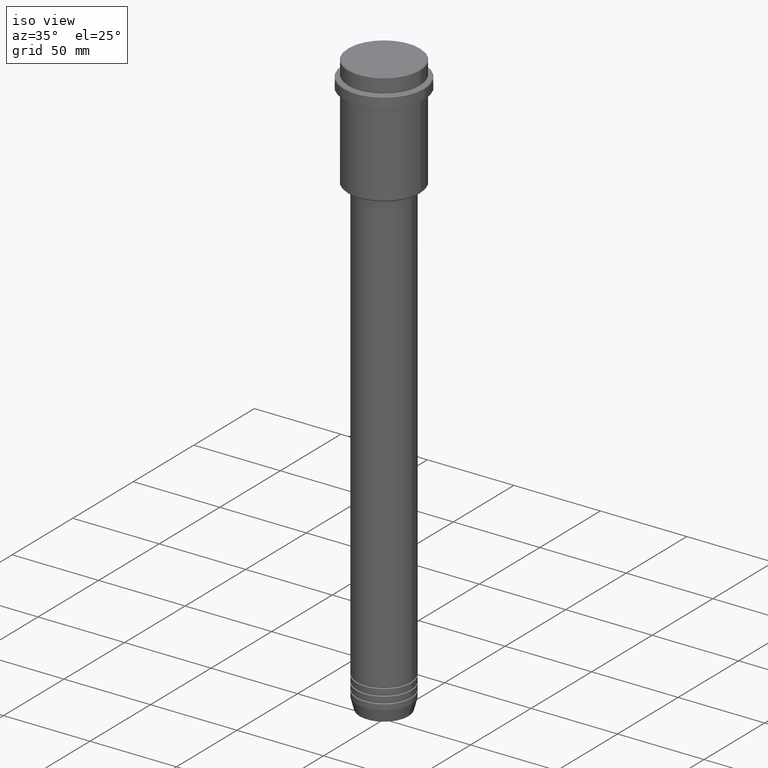
[diagram: clean part render]
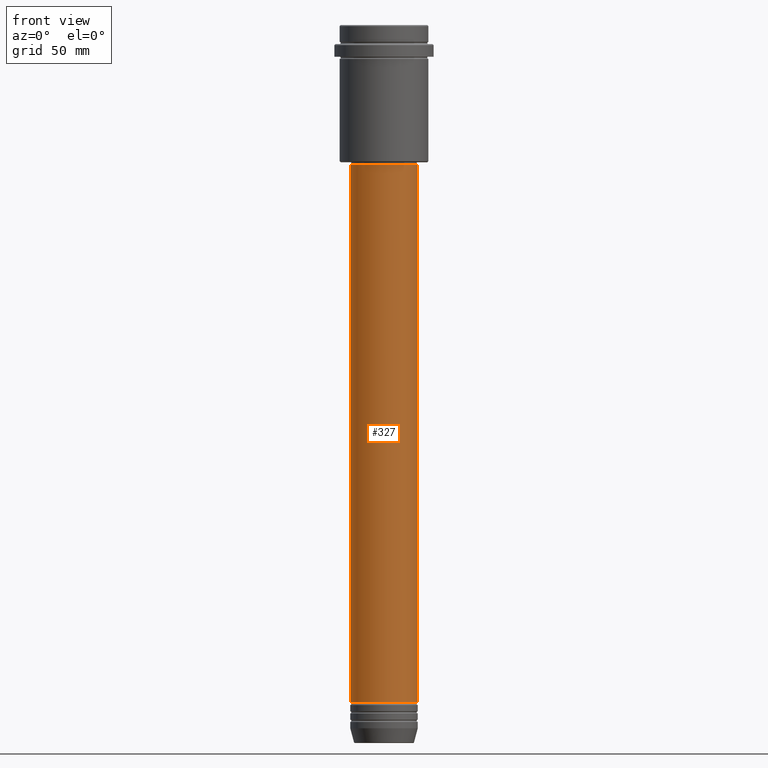
[diagram: tour spotlight — one face highlighted and labeled with its STEP entity id]
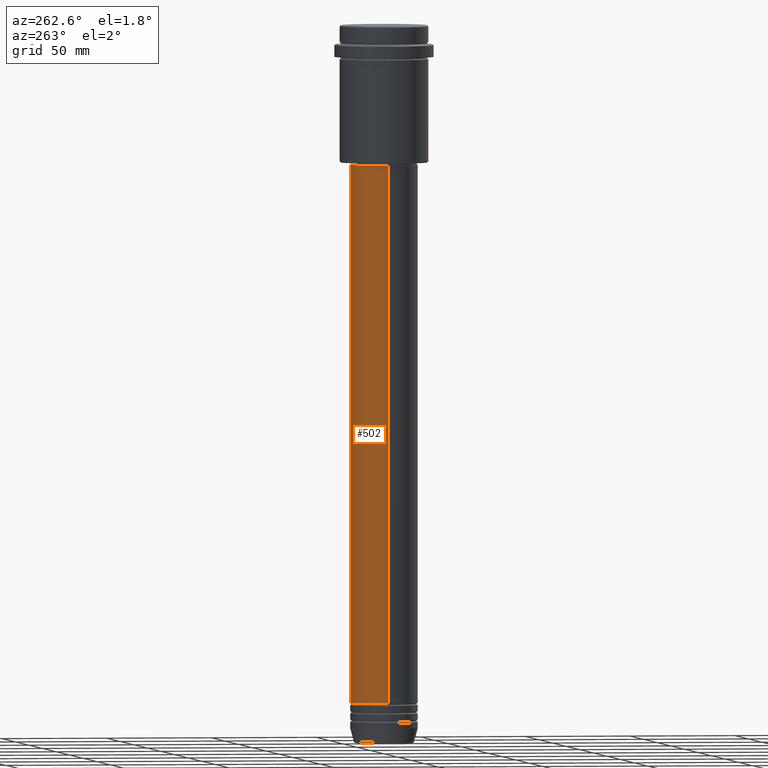
[diagram: tour spotlight — one face highlighted and labeled with its STEP entity id]
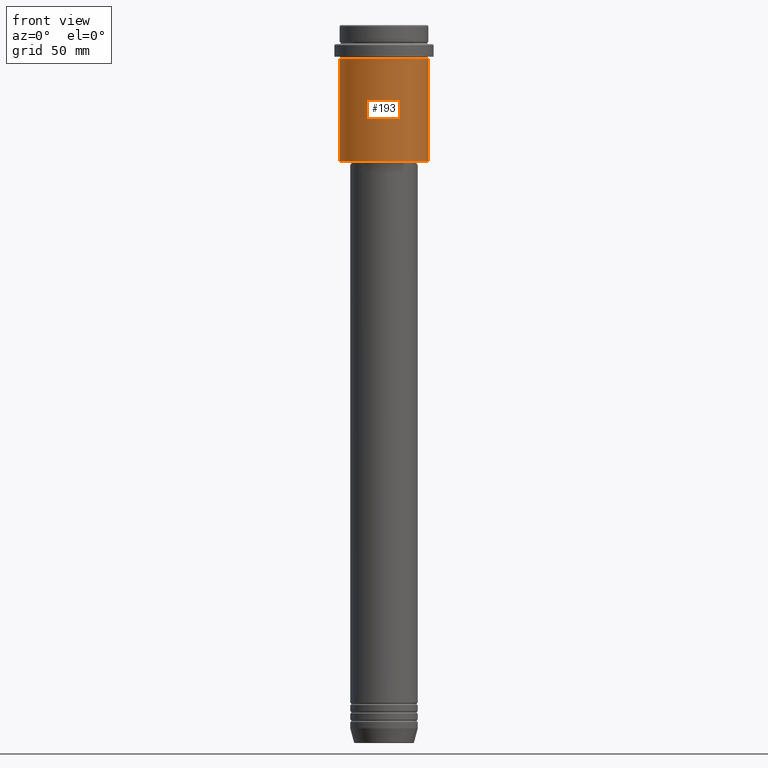
[diagram: tour spotlight — one face highlighted and labeled with its STEP entity id]
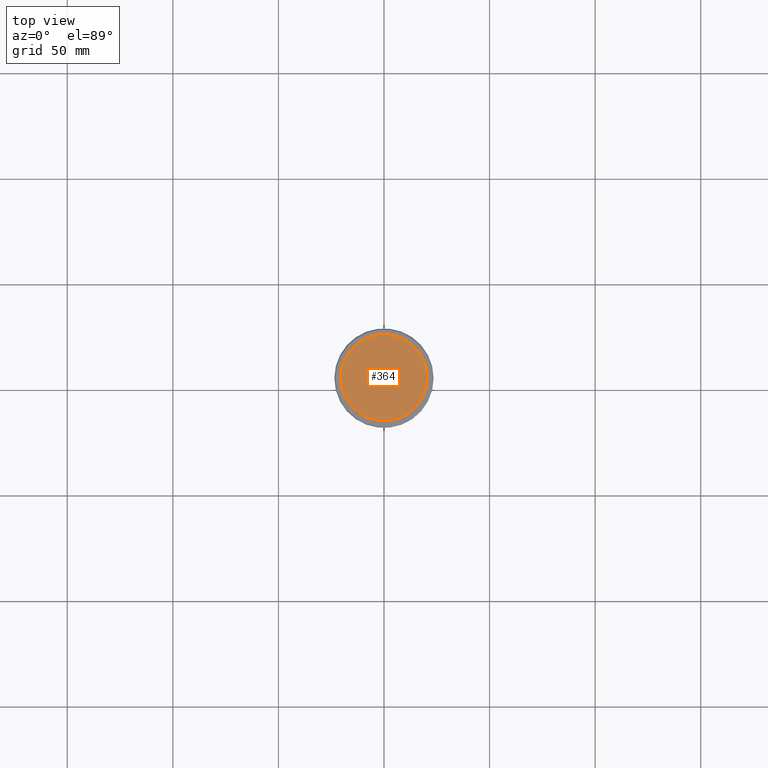
[diagram: tour spotlight — one face highlighted and labeled with its STEP entity id]
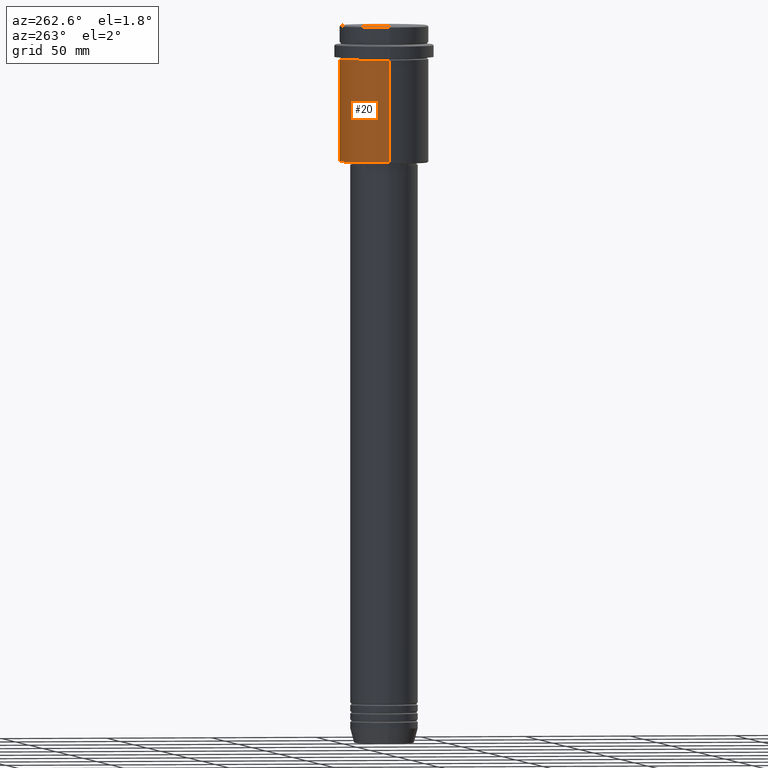
[diagram: tour spotlight — one face highlighted and labeled with its STEP entity id]
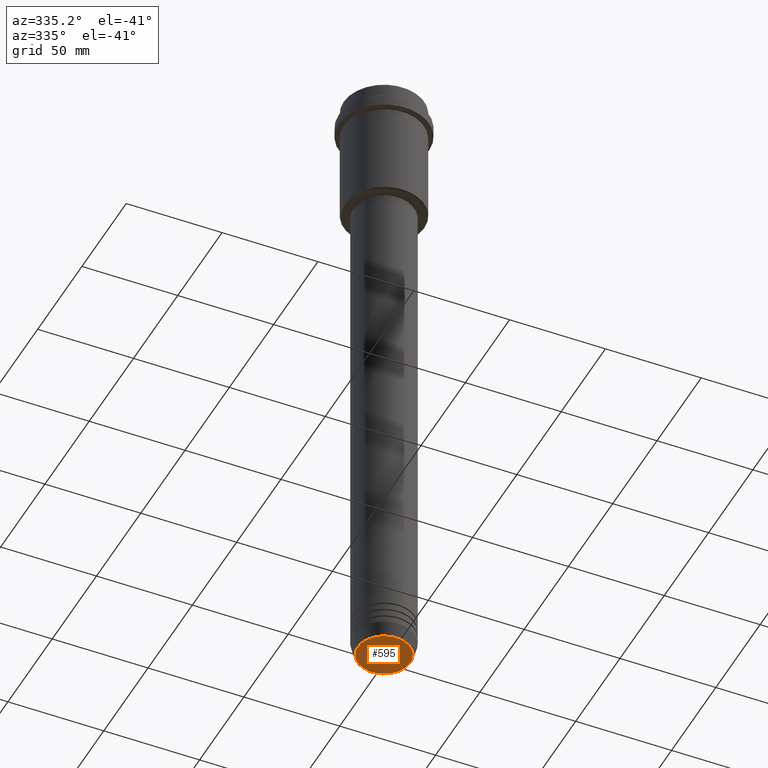
[diagram: tour spotlight — one face highlighted and labeled with its STEP entity id]
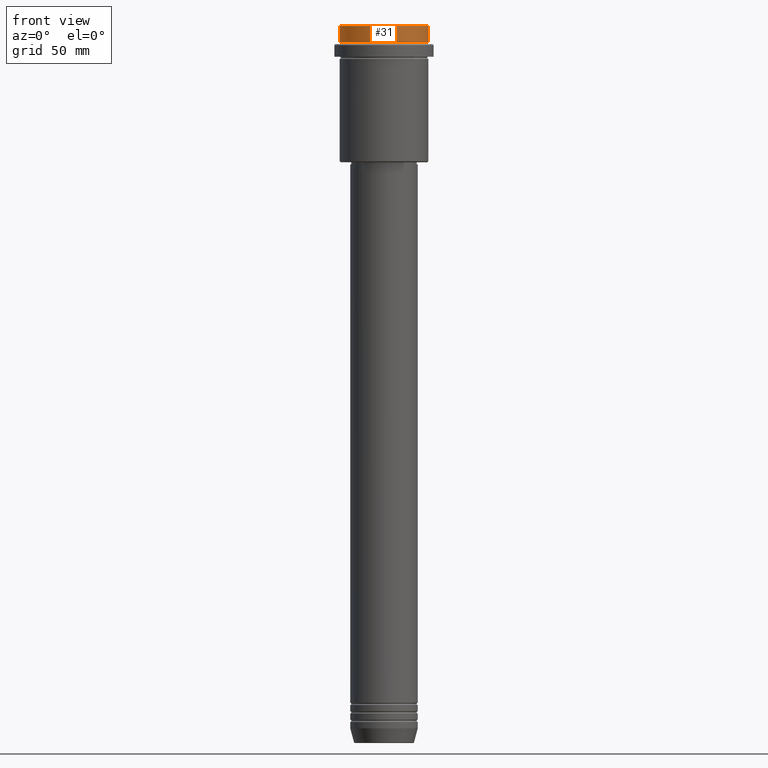
[diagram: tour spotlight — one face highlighted and labeled with its STEP entity id]
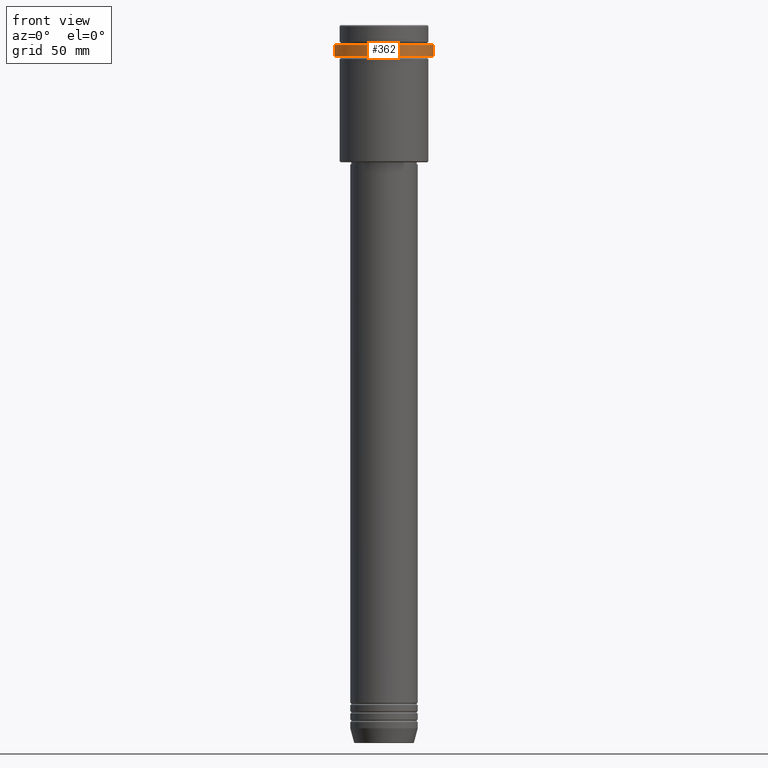
[diagram: tour spotlight — one face highlighted and labeled with its STEP entity id]
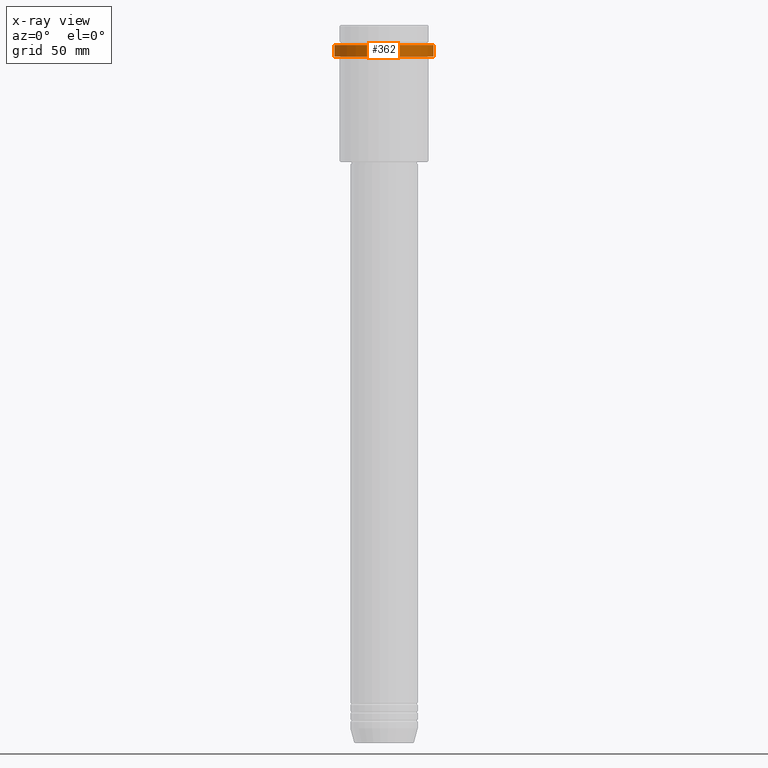
[diagram: x-ray of the same camera — body ghosted, this tour face saturated]
A machine part: a face-by-face anatomy tour. The part has 52 B-rep faces; the first image is the clean iso view, then the 8 largest visible faces are spotlighted one at a time (largest first), each with its STEP entity span.

Face 1 — front view, entity #327. In plain terms, the highlighted cylindrical surface (edge-blend (fillet) strip) has radius 16 mm, axis along (-0, -0, 1).
Definition (entity closure, byte-faithful):
#14 = EDGE_CURVE ( 'NONE', #330, #1204, #632, .T. ) ;
#42 = CARTESIAN_POINT ( 'NONE',  ( -16.00000000000000355, 1.959434878635765526E-15, -65.99999999999991473 ) ) ;
#59 = DIRECTION ( 'NONE',  ( -0.000000000000000000, -0.000000000000000000, 1.000000000000000000 ) ) ;
#96 = AXIS2_PLACEMENT_3D ( 'NONE', #317, #1205, #874 ) ;
#131 = DIRECTION ( 'NONE',  ( -0.000000000000000000, -0.000000000000000000, 1.000000000000000000 ) ) ;
#138 = DIRECTION ( 'NONE',  ( 1.000000000000000000, 0.000000000000000000, 0.000000000000000000 ) ) ;
#170 = ORIENTED_EDGE ( 'NONE', *, *, #237, .T. ) ;
#237 = EDGE_CURVE ( 'NONE', #904, #1204, #671, .T. ) ;
#254 = EDGE_CURVE ( 'NONE', #1353, #904, #1234, .T. ) ;
#314 = AXIS2_PLACEMENT_3D ( 'NONE', #345, #1127, #138 ) ;
#317 = CARTESIAN_POINT ( 'NONE',  ( 0.000000000000000000, 0.000000000000000000, -65.99999999999991473 ) ) ;
#327 = ADVANCED_FACE ( 'NONE', ( #585 ), #390, .T. ) ;
#330 = VERTEX_POINT ( 'NONE', #42 ) ;
#335 = VECTOR ( 'NONE', #1238, 1000.000000000000000 ) ;
#345 = CARTESIAN_POINT ( 'NONE',  ( 0.000000000000000000, 0.000000000000000000, -320.9999999999998863 ) ) ;
#349 = CARTESIAN_POINT ( 'NONE',  ( 16.00000000000000000, 0.000000000000000000, 0.000000000000000000 ) ) ;
#390 = CYLINDRICAL_SURFACE ( 'NONE', #448, 16.00000000000000000 ) ;
#448 = AXIS2_PLACEMENT_3D ( 'NONE', #1024, #59, #811 ) ;
#543 = CARTESIAN_POINT ( 'NONE',  ( -16.00000000000000000, 1.959434878635765131E-15, 0.000000000000000000 ) ) ;
#585 = FACE_OUTER_BOUND ( 'NONE', #741, .T. ) ;
#598 = CARTESIAN_POINT ( 'NONE',  ( 16.00000000000000355, 0.000000000000000000, -65.99999999999991473 ) ) ;
#632 = CIRCLE ( 'NONE', #96, 16.00000000000000355 ) ;
#645 = ORIENTED_EDGE ( 'NONE', *, *, #14, .F. ) ;
#671 = LINE ( 'NONE', #349, #335 ) ;
#741 = EDGE_LOOP ( 'NONE', ( #1272, #853, #170, #645 ) ) ;
#811 = DIRECTION ( 'NONE',  ( 1.000000000000000000, 0.000000000000000000, 0.000000000000000000 ) ) ;
#831 = VECTOR ( 'NONE', #131, 1000.000000000000000 ) ;
#853 = ORIENTED_EDGE ( 'NONE', *, *, #254, .T. ) ;
#874 = DIRECTION ( 'NONE',  ( 1.000000000000000000, 0.000000000000000000, 0.000000000000000000 ) ) ;
#904 = VERTEX_POINT ( 'NONE', #1328 ) ;
#1024 = CARTESIAN_POINT ( 'NONE',  ( 0.000000000000000000, 0.000000000000000000, 0.000000000000000000 ) ) ;
#1099 = EDGE_CURVE ( 'NONE', #1353, #330, #1126, .T. ) ;
#1126 = LINE ( 'NONE', #543, #831 ) ;
#1127 = DIRECTION ( 'NONE',  ( -0.000000000000000000, -0.000000000000000000, 1.000000000000000000 ) ) ;
#1204 = VERTEX_POINT ( 'NONE', #598 ) ;
#1205 = DIRECTION ( 'NONE',  ( -0.000000000000000000, -0.000000000000000000, 1.000000000000000000 ) ) ;
#1219 = CARTESIAN_POINT ( 'NONE',  ( -16.00000000000000000, 1.959434878635765131E-15, -320.9999999999998863 ) ) ;
#1234 = CIRCLE ( 'NONE', #314, 16.00000000000000000 ) ;
#1238 = DIRECTION ( 'NONE',  ( -0.000000000000000000, -0.000000000000000000, 1.000000000000000000 ) ) ;
#1272 = ORIENTED_EDGE ( 'NONE', *, *, #1099, .F. ) ;
#1328 = CARTESIAN_POINT ( 'NONE',  ( 16.00000000000000000, 0.000000000000000000, -320.9999999999998863 ) ) ;
#1353 = VERTEX_POINT ( 'NONE', #1219 ) ;

Face 2 — auxiliary view, entity #502. In plain terms, the highlighted cylindrical surface (edge-blend (fillet) strip) has radius 16 mm, axis along (-0, -0, 1).
Definition (entity closure, byte-faithful):
#42 = CARTESIAN_POINT ( 'NONE',  ( -16.00000000000000355, 1.959434878635765526E-15, -65.99999999999991473 ) ) ;
#81 = CIRCLE ( 'NONE', #994, 16.00000000000000000 ) ;
#124 = AXIS2_PLACEMENT_3D ( 'NONE', #749, #316, #1374 ) ;
#131 = DIRECTION ( 'NONE',  ( -0.000000000000000000, -0.000000000000000000, 1.000000000000000000 ) ) ;
#225 = DIRECTION ( 'NONE',  ( -0.000000000000000000, -0.000000000000000000, 1.000000000000000000 ) ) ;
#237 = EDGE_CURVE ( 'NONE', #904, #1204, #671, .T. ) ;
#245 = DIRECTION ( 'NONE',  ( -0.000000000000000000, -0.000000000000000000, 1.000000000000000000 ) ) ;
#265 = EDGE_CURVE ( 'NONE', #1204, #330, #355, .T. ) ;
#316 = DIRECTION ( 'NONE',  ( -0.000000000000000000, -0.000000000000000000, 1.000000000000000000 ) ) ;
#330 = VERTEX_POINT ( 'NONE', #42 ) ;
#335 = VECTOR ( 'NONE', #1238, 1000.000000000000000 ) ;
#349 = CARTESIAN_POINT ( 'NONE',  ( 16.00000000000000000, 0.000000000000000000, 0.000000000000000000 ) ) ;
#355 = CIRCLE ( 'NONE', #1142, 16.00000000000000355 ) ;
#502 = ADVANCED_FACE ( 'NONE', ( #1392 ), #1294, .T. ) ;
#543 = CARTESIAN_POINT ( 'NONE',  ( -16.00000000000000000, 1.959434878635765131E-15, 0.000000000000000000 ) ) ;
#574 = EDGE_CURVE ( 'NONE', #904, #1353, #81, .T. ) ;
#575 = CARTESIAN_POINT ( 'NONE',  ( 0.000000000000000000, 0.000000000000000000, -65.99999999999991473 ) ) ;
#598 = CARTESIAN_POINT ( 'NONE',  ( 16.00000000000000355, 0.000000000000000000, -65.99999999999991473 ) ) ;
#640 = ORIENTED_EDGE ( 'NONE', *, *, #574, .T. ) ;
#641 = ORIENTED_EDGE ( 'NONE', *, *, #1099, .T. ) ;
#671 = LINE ( 'NONE', #349, #335 ) ;
#686 = ORIENTED_EDGE ( 'NONE', *, *, #237, .F. ) ;
#708 = DIRECTION ( 'NONE',  ( 1.000000000000000000, 0.000000000000000000, 0.000000000000000000 ) ) ;
#749 = CARTESIAN_POINT ( 'NONE',  ( 0.000000000000000000, 0.000000000000000000, 0.000000000000000000 ) ) ;
#831 = VECTOR ( 'NONE', #131, 1000.000000000000000 ) ;
#872 = DIRECTION ( 'NONE',  ( 1.000000000000000000, 0.000000000000000000, 0.000000000000000000 ) ) ;
#904 = VERTEX_POINT ( 'NONE', #1328 ) ;
#994 = AXIS2_PLACEMENT_3D ( 'NONE', #1098, #225, #872 ) ;
#1098 = CARTESIAN_POINT ( 'NONE',  ( 0.000000000000000000, 0.000000000000000000, -320.9999999999998863 ) ) ;
#1099 = EDGE_CURVE ( 'NONE', #1353, #330, #1126, .T. ) ;
#1126 = LINE ( 'NONE', #543, #831 ) ;
#1142 = AXIS2_PLACEMENT_3D ( 'NONE', #575, #245, #708 ) ;
#1204 = VERTEX_POINT ( 'NONE', #598 ) ;
#1219 = CARTESIAN_POINT ( 'NONE',  ( -16.00000000000000000, 1.959434878635765131E-15, -320.9999999999998863 ) ) ;
#1238 = DIRECTION ( 'NONE',  ( -0.000000000000000000, -0.000000000000000000, 1.000000000000000000 ) ) ;
#1245 = ORIENTED_EDGE ( 'NONE', *, *, #265, .F. ) ;
#1294 = CYLINDRICAL_SURFACE ( 'NONE', #124, 16.00000000000000000 ) ;
#1328 = CARTESIAN_POINT ( 'NONE',  ( 16.00000000000000000, 0.000000000000000000, -320.9999999999998863 ) ) ;
#1353 = VERTEX_POINT ( 'NONE', #1219 ) ;
#1374 = DIRECTION ( 'NONE',  ( 1.000000000000000000, 0.000000000000000000, 0.000000000000000000 ) ) ;
#1379 = EDGE_LOOP ( 'NONE', ( #640, #641, #1245, #686 ) ) ;
#1392 = FACE_OUTER_BOUND ( 'NONE', #1379, .T. ) ;

Face 3 — front view, entity #193. In plain terms, the highlighted cylindrical surface (partial cylindrical patch) has radius 21 mm, axis along (-0, -0, 1).
Definition (entity closure, byte-faithful):
#28 = CARTESIAN_POINT ( 'NONE',  ( 20.99999999999999645, 0.000000000000000000, 0.000000000000000000 ) ) ;
#85 = CARTESIAN_POINT ( 'NONE',  ( 0.000000000000000000, 0.000000000000000000, -16.00000000000000355 ) ) ;
#125 = CARTESIAN_POINT ( 'NONE',  ( 0.000000000000000000, 0.000000000000000000, 0.000000000000000000 ) ) ;
#146 = VECTOR ( 'NONE', #569, 1000.000000000000000 ) ;
#147 = VERTEX_POINT ( 'NONE', #356 ) ;
#176 = AXIS2_PLACEMENT_3D ( 'NONE', #85, #525, #409 ) ;
#177 = EDGE_CURVE ( 'NONE', #1213, #147, #1316, .T. ) ;
#185 = VERTEX_POINT ( 'NONE', #1100 ) ;
#193 = ADVANCED_FACE ( 'NONE', ( #774 ), #995, .T. ) ;
#299 = ORIENTED_EDGE ( 'NONE', *, *, #743, .F. ) ;
#347 = ORIENTED_EDGE ( 'NONE', *, *, #547, .F. ) ;
#356 = CARTESIAN_POINT ( 'NONE',  ( 20.99999999999999645, 0.000000000000000000, -16.00000000000000355 ) ) ;
#391 = EDGE_LOOP ( 'NONE', ( #299, #732, #1153, #347 ) ) ;
#403 = AXIS2_PLACEMENT_3D ( 'NONE', #125, #1005, #667 ) ;
#409 = DIRECTION ( 'NONE',  ( 1.000000000000000000, 0.000000000000000000, 0.000000000000000000 ) ) ;
#427 = CIRCLE ( 'NONE', #176, 20.99999999999999645 ) ;
#525 = DIRECTION ( 'NONE',  ( -0.000000000000000000, -0.000000000000000000, 1.000000000000000000 ) ) ;
#547 = EDGE_CURVE ( 'NONE', #1134, #147, #427, .T. ) ;
#569 = DIRECTION ( 'NONE',  ( -0.000000000000000000, -0.000000000000000000, 1.000000000000000000 ) ) ;
#570 = DIRECTION ( 'NONE',  ( -0.000000000000000000, -0.000000000000000000, 1.000000000000000000 ) ) ;
#580 = CARTESIAN_POINT ( 'NONE',  ( 0.000000000000000000, 0.000000000000000000, -64.49999999999992895 ) ) ;
#667 = DIRECTION ( 'NONE',  ( 1.000000000000000000, 0.000000000000000000, 0.000000000000000000 ) ) ;
#684 = LINE ( 'NONE', #1121, #1070 ) ;
#732 = ORIENTED_EDGE ( 'NONE', *, *, #970, .T. ) ;
#743 = EDGE_CURVE ( 'NONE', #185, #1134, #684, .T. ) ;
#774 = FACE_OUTER_BOUND ( 'NONE', #391, .T. ) ;
#786 = CIRCLE ( 'NONE', #906, 20.99999999999999645 ) ;
#906 = AXIS2_PLACEMENT_3D ( 'NONE', #580, #1203, #1197 ) ;
#970 = EDGE_CURVE ( 'NONE', #185, #1213, #786, .T. ) ;
#995 = CYLINDRICAL_SURFACE ( 'NONE', #403, 20.99999999999999645 ) ;
#1005 = DIRECTION ( 'NONE',  ( -0.000000000000000000, -0.000000000000000000, 1.000000000000000000 ) ) ;
#1031 = CARTESIAN_POINT ( 'NONE',  ( 20.99999999999999645, 0.000000000000000000, -64.49999999999992895 ) ) ;
#1044 = CARTESIAN_POINT ( 'NONE',  ( -20.99999999999999645, 2.571758278209441267E-15, -16.00000000000000355 ) ) ;
#1070 = VECTOR ( 'NONE', #570, 1000.000000000000000 ) ;
#1100 = CARTESIAN_POINT ( 'NONE',  ( -20.99999999999999645, 2.571758278209441267E-15, -64.49999999999992895 ) ) ;
#1121 = CARTESIAN_POINT ( 'NONE',  ( -20.99999999999999645, 2.571758278209441267E-15, 0.000000000000000000 ) ) ;
#1134 = VERTEX_POINT ( 'NONE', #1044 ) ;
#1153 = ORIENTED_EDGE ( 'NONE', *, *, #177, .T. ) ;
#1197 = DIRECTION ( 'NONE',  ( -1.000000000000000000, 0.000000000000000000, 0.000000000000000000 ) ) ;
#1203 = DIRECTION ( 'NONE',  ( -0.000000000000000000, -0.000000000000000000, 1.000000000000000000 ) ) ;
#1213 = VERTEX_POINT ( 'NONE', #1031 ) ;
#1316 = LINE ( 'NONE', #28, #146 ) ;

Face 4 — top view, entity #364. In plain terms, the highlighted planar face has unit normal (0, -0, 1).
Definition (entity closure, byte-faithful):
#111 = CARTESIAN_POINT ( 'NONE',  ( 0.000000000000000000, 0.000000000000000000, 0.000000000000000000 ) ) ;
#114 = DIRECTION ( 'NONE',  ( -0.000000000000000000, -0.000000000000000000, 1.000000000000000000 ) ) ;
#262 = AXIS2_PLACEMENT_3D ( 'NONE', #453, #114, #568 ) ;
#263 = CARTESIAN_POINT ( 'NONE',  ( 0.000000000000000000, 0.000000000000000000, 0.000000000000000000 ) ) ;
#296 = DIRECTION ( 'NONE',  ( -0.000000000000000000, -0.000000000000000000, 1.000000000000000000 ) ) ;
#364 = ADVANCED_FACE ( 'NONE', ( #922 ), #727, .T. ) ;
#374 = DIRECTION ( 'NONE',  ( 0.000000000000000000, -0.000000000000000000, 1.000000000000000000 ) ) ;
#378 = ORIENTED_EDGE ( 'NONE', *, *, #1342, .T. ) ;
#453 = CARTESIAN_POINT ( 'NONE',  ( 0.000000000000000000, 0.000000000000000000, 0.000000000000000000 ) ) ;
#476 = VERTEX_POINT ( 'NONE', #1087 ) ;
#568 = DIRECTION ( 'NONE',  ( 1.000000000000000000, 0.000000000000000000, 0.000000000000000000 ) ) ;
#587 = EDGE_LOOP ( 'NONE', ( #378, #866 ) ) ;
#678 = CIRCLE ( 'NONE', #753, 20.49999999999996447 ) ;
#727 = PLANE ( 'NONE',  #979 ) ;
#740 = CARTESIAN_POINT ( 'NONE',  ( 20.49999999999996447, 2.541142108230755507E-15, 0.000000000000000000 ) ) ;
#753 = AXIS2_PLACEMENT_3D ( 'NONE', #111, #296, #1095 ) ;
#807 = CIRCLE ( 'NONE', #262, 20.49999999999996447 ) ;
#866 = ORIENTED_EDGE ( 'NONE', *, *, #1042, .T. ) ;
#922 = FACE_OUTER_BOUND ( 'NONE', #587, .T. ) ;
#979 = AXIS2_PLACEMENT_3D ( 'NONE', #263, #374, #1144 ) ;
#1042 = EDGE_CURVE ( 'NONE', #1371, #476, #807, .T. ) ;
#1087 = CARTESIAN_POINT ( 'NONE',  ( -20.49999999999996447, 0.000000000000000000, 0.000000000000000000 ) ) ;
#1095 = DIRECTION ( 'NONE',  ( 1.000000000000000000, 0.000000000000000000, 0.000000000000000000 ) ) ;
#1144 = DIRECTION ( 'NONE',  ( 1.000000000000000000, 0.000000000000000000, 0.000000000000000000 ) ) ;
#1342 = EDGE_CURVE ( 'NONE', #476, #1371, #678, .T. ) ;
#1371 = VERTEX_POINT ( 'NONE', #740 ) ;

Face 5 — auxiliary view, entity #20. In plain terms, the highlighted cylindrical surface (partial cylindrical patch) has radius 21 mm, axis along (-0, -0, 1).
Definition (entity closure, byte-faithful):
#20 = ADVANCED_FACE ( 'NONE', ( #759 ), #432, .T. ) ;
#28 = CARTESIAN_POINT ( 'NONE',  ( 20.99999999999999645, 0.000000000000000000, 0.000000000000000000 ) ) ;
#95 = AXIS2_PLACEMENT_3D ( 'NONE', #388, #1417, #1218 ) ;
#146 = VECTOR ( 'NONE', #569, 1000.000000000000000 ) ;
#147 = VERTEX_POINT ( 'NONE', #356 ) ;
#177 = EDGE_CURVE ( 'NONE', #1213, #147, #1316, .T. ) ;
#182 = ORIENTED_EDGE ( 'NONE', *, *, #743, .T. ) ;
#185 = VERTEX_POINT ( 'NONE', #1100 ) ;
#226 = CIRCLE ( 'NONE', #609, 20.99999999999999645 ) ;
#308 = CARTESIAN_POINT ( 'NONE',  ( 0.000000000000000000, 0.000000000000000000, 0.000000000000000000 ) ) ;
#356 = CARTESIAN_POINT ( 'NONE',  ( 20.99999999999999645, 0.000000000000000000, -16.00000000000000355 ) ) ;
#388 = CARTESIAN_POINT ( 'NONE',  ( 0.000000000000000000, 0.000000000000000000, -16.00000000000000355 ) ) ;
#407 = EDGE_CURVE ( 'NONE', #1213, #185, #226, .T. ) ;
#432 = CYLINDRICAL_SURFACE ( 'NONE', #492, 20.99999999999999645 ) ;
#492 = AXIS2_PLACEMENT_3D ( 'NONE', #308, #1302, #957 ) ;
#569 = DIRECTION ( 'NONE',  ( -0.000000000000000000, -0.000000000000000000, 1.000000000000000000 ) ) ;
#570 = DIRECTION ( 'NONE',  ( -0.000000000000000000, -0.000000000000000000, 1.000000000000000000 ) ) ;
#579 = CIRCLE ( 'NONE', #95, 20.99999999999999645 ) ;
#609 = AXIS2_PLACEMENT_3D ( 'NONE', #849, #842, #966 ) ;
#673 = EDGE_LOOP ( 'NONE', ( #737, #182, #1187, #935 ) ) ;
#684 = LINE ( 'NONE', #1121, #1070 ) ;
#737 = ORIENTED_EDGE ( 'NONE', *, *, #407, .T. ) ;
#743 = EDGE_CURVE ( 'NONE', #185, #1134, #684, .T. ) ;
#759 = FACE_OUTER_BOUND ( 'NONE', #673, .T. ) ;
#842 = DIRECTION ( 'NONE',  ( -0.000000000000000000, -0.000000000000000000, 1.000000000000000000 ) ) ;
#849 = CARTESIAN_POINT ( 'NONE',  ( 0.000000000000000000, 0.000000000000000000, -64.49999999999992895 ) ) ;
#888 = EDGE_CURVE ( 'NONE', #147, #1134, #579, .T. ) ;
#935 = ORIENTED_EDGE ( 'NONE', *, *, #177, .F. ) ;
#957 = DIRECTION ( 'NONE',  ( 1.000000000000000000, 0.000000000000000000, 0.000000000000000000 ) ) ;
#966 = DIRECTION ( 'NONE',  ( -1.000000000000000000, 0.000000000000000000, 0.000000000000000000 ) ) ;
#1031 = CARTESIAN_POINT ( 'NONE',  ( 20.99999999999999645, 0.000000000000000000, -64.49999999999992895 ) ) ;
#1044 = CARTESIAN_POINT ( 'NONE',  ( -20.99999999999999645, 2.571758278209441267E-15, -16.00000000000000355 ) ) ;
#1070 = VECTOR ( 'NONE', #570, 1000.000000000000000 ) ;
#1100 = CARTESIAN_POINT ( 'NONE',  ( -20.99999999999999645, 2.571758278209441267E-15, -64.49999999999992895 ) ) ;
#1121 = CARTESIAN_POINT ( 'NONE',  ( -20.99999999999999645, 2.571758278209441267E-15, 0.000000000000000000 ) ) ;
#1134 = VERTEX_POINT ( 'NONE', #1044 ) ;
#1187 = ORIENTED_EDGE ( 'NONE', *, *, #888, .F. ) ;
#1213 = VERTEX_POINT ( 'NONE', #1031 ) ;
#1218 = DIRECTION ( 'NONE',  ( 1.000000000000000000, 0.000000000000000000, 0.000000000000000000 ) ) ;
#1302 = DIRECTION ( 'NONE',  ( -0.000000000000000000, -0.000000000000000000, 1.000000000000000000 ) ) ;
#1316 = LINE ( 'NONE', #28, #146 ) ;
#1417 = DIRECTION ( 'NONE',  ( -0.000000000000000000, -0.000000000000000000, 1.000000000000000000 ) ) ;

Face 6 — auxiliary view, entity #595. In plain terms, the highlighted planar face has unit normal (0, -0, 1).
Definition (entity closure, byte-faithful):
#30 = CIRCLE ( 'NONE', #1021, 13.74069215899265828 ) ;
#129 = EDGE_CURVE ( 'NONE', #191, #912, #30, .T. ) ;
#191 = VERTEX_POINT ( 'NONE', #340 ) ;
#203 = AXIS2_PLACEMENT_3D ( 'NONE', #757, #1198, #865 ) ;
#329 = PLANE ( 'NONE',  #1117 ) ;
#340 = CARTESIAN_POINT ( 'NONE',  ( -13.74069215899265828, 1.712322416342415986E-15, -340.0000000000000000 ) ) ;
#435 = CARTESIAN_POINT ( 'NONE',  ( 0.000000000000000000, 0.000000000000000000, -340.0000000000000000 ) ) ;
#451 = DIRECTION ( 'NONE',  ( 0.000000000000000000, 0.000000000000000000, -1.000000000000000000 ) ) ;
#463 = DIRECTION ( 'NONE',  ( 1.000000000000000000, 0.000000000000000000, 0.000000000000000000 ) ) ;
#559 = CARTESIAN_POINT ( 'NONE',  ( 13.74069215899265828, 0.000000000000000000, -340.0000000000000000 ) ) ;
#595 = ADVANCED_FACE ( 'NONE', ( #658 ), #329, .F. ) ;
#647 = EDGE_CURVE ( 'NONE', #912, #191, #1352, .T. ) ;
#658 = FACE_OUTER_BOUND ( 'NONE', #1033, .T. ) ;
#744 = DIRECTION ( 'NONE',  ( 1.000000000000000000, 0.000000000000000000, 0.000000000000000000 ) ) ;
#757 = CARTESIAN_POINT ( 'NONE',  ( 0.000000000000000000, 0.000000000000000000, -340.0000000000000000 ) ) ;
#768 = DIRECTION ( 'NONE',  ( 0.000000000000000000, -0.000000000000000000, 1.000000000000000000 ) ) ;
#865 = DIRECTION ( 'NONE',  ( 1.000000000000000000, 0.000000000000000000, 0.000000000000000000 ) ) ;
#884 = ORIENTED_EDGE ( 'NONE', *, *, #647, .T. ) ;
#912 = VERTEX_POINT ( 'NONE', #559 ) ;
#1021 = AXIS2_PLACEMENT_3D ( 'NONE', #1290, #451, #463 ) ;
#1033 = EDGE_LOOP ( 'NONE', ( #884, #1364 ) ) ;
#1117 = AXIS2_PLACEMENT_3D ( 'NONE', #435, #768, #744 ) ;
#1198 = DIRECTION ( 'NONE',  ( 0.000000000000000000, 0.000000000000000000, -1.000000000000000000 ) ) ;
#1290 = CARTESIAN_POINT ( 'NONE',  ( 0.000000000000000000, 0.000000000000000000, -340.0000000000000000 ) ) ;
#1352 = CIRCLE ( 'NONE', #203, 13.74069215899265828 ) ;
#1364 = ORIENTED_EDGE ( 'NONE', *, *, #129, .T. ) ;

Face 7 — front view, entity #31. In plain terms, the highlighted cylindrical surface (partial cylindrical patch) has radius 21 mm, axis along (-0, -0, 1).
Definition (entity closure, byte-faithful):
#22 = CARTESIAN_POINT ( 'NONE',  ( -20.99999999999999645, 2.571758278209441267E-15, 0.000000000000000000 ) ) ;
#31 = ADVANCED_FACE ( 'NONE', ( #625 ), #1062, .T. ) ;
#74 = DIRECTION ( 'NONE',  ( -0.000000000000000000, -0.000000000000000000, 1.000000000000000000 ) ) ;
#164 = EDGE_CURVE ( 'NONE', #594, #714, #1120, .T. ) ;
#242 = AXIS2_PLACEMENT_3D ( 'NONE', #752, #74, #306 ) ;
#252 = DIRECTION ( 'NONE',  ( 0.000000000000000000, 0.000000000000000000, -1.000000000000000000 ) ) ;
#300 = ORIENTED_EDGE ( 'NONE', *, *, #751, .T. ) ;
#306 = DIRECTION ( 'NONE',  ( 1.000000000000000000, 0.000000000000000000, 0.000000000000000000 ) ) ;
#315 = CIRCLE ( 'NONE', #681, 20.99999999999999645 ) ;
#368 = ORIENTED_EDGE ( 'NONE', *, *, #164, .F. ) ;
#376 = AXIS2_PLACEMENT_3D ( 'NONE', #628, #959, #1391 ) ;
#417 = EDGE_CURVE ( 'NONE', #697, #936, #1403, .T. ) ;
#452 = EDGE_LOOP ( 'NONE', ( #368, #1067, #692, #300 ) ) ;
#464 = DIRECTION ( 'NONE',  ( 1.000000000000000000, 0.000000000000000000, 0.000000000000000000 ) ) ;
#594 = VERTEX_POINT ( 'NONE', #982 ) ;
#625 = FACE_OUTER_BOUND ( 'NONE', #452, .T. ) ;
#628 = CARTESIAN_POINT ( 'NONE',  ( 0.000000000000000000, 0.000000000000000000, -7.999999999999998224 ) ) ;
#653 = VECTOR ( 'NONE', #897, 1000.000000000000000 ) ;
#681 = AXIS2_PLACEMENT_3D ( 'NONE', #1011, #252, #464 ) ;
#692 = ORIENTED_EDGE ( 'NONE', *, *, #417, .T. ) ;
#697 = VERTEX_POINT ( 'NONE', #1339 ) ;
#714 = VERTEX_POINT ( 'NONE', #1224 ) ;
#751 = EDGE_CURVE ( 'NONE', #936, #714, #315, .T. ) ;
#752 = CARTESIAN_POINT ( 'NONE',  ( 0.000000000000000000, 0.000000000000000000, 0.000000000000000000 ) ) ;
#861 = CIRCLE ( 'NONE', #376, 20.99999999999999645 ) ;
#897 = DIRECTION ( 'NONE',  ( -0.000000000000000000, -0.000000000000000000, 1.000000000000000000 ) ) ;
#936 = VERTEX_POINT ( 'NONE', #1102 ) ;
#959 = DIRECTION ( 'NONE',  ( -0.000000000000000000, -0.000000000000000000, 1.000000000000000000 ) ) ;
#982 = CARTESIAN_POINT ( 'NONE',  ( -20.99999999999999645, 2.571758278209441267E-15, -7.999999999999998224 ) ) ;
#1011 = CARTESIAN_POINT ( 'NONE',  ( 0.000000000000000000, 0.000000000000000000, -0.5000000000000628386 ) ) ;
#1022 = VECTOR ( 'NONE', #1068, 1000.000000000000000 ) ;
#1062 = CYLINDRICAL_SURFACE ( 'NONE', #242, 20.99999999999999645 ) ;
#1067 = ORIENTED_EDGE ( 'NONE', *, *, #1397, .T. ) ;
#1068 = DIRECTION ( 'NONE',  ( -0.000000000000000000, -0.000000000000000000, 1.000000000000000000 ) ) ;
#1102 = CARTESIAN_POINT ( 'NONE',  ( 20.99999999999999645, 0.000000000000000000, -0.5000000000000628386 ) ) ;
#1120 = LINE ( 'NONE', #22, #653 ) ;
#1224 = CARTESIAN_POINT ( 'NONE',  ( -20.99999999999999645, 2.571758278209441267E-15, -0.5000000000000628386 ) ) ;
#1301 = CARTESIAN_POINT ( 'NONE',  ( 20.99999999999999645, 0.000000000000000000, 0.000000000000000000 ) ) ;
#1339 = CARTESIAN_POINT ( 'NONE',  ( 20.99999999999999645, 0.000000000000000000, -7.999999999999998224 ) ) ;
#1391 = DIRECTION ( 'NONE',  ( 1.000000000000000000, 0.000000000000000000, 0.000000000000000000 ) ) ;
#1397 = EDGE_CURVE ( 'NONE', #594, #697, #861, .T. ) ;
#1403 = LINE ( 'NONE', #1301, #1022 ) ;

Face 8 — front view, entity #362. An x-ray twin of the same camera follows (body ghosted, this face saturated) — the face is partly hidden behind the body. In plain terms, the highlighted cylindrical surface (partial cylindrical patch) has radius 23.5 mm, axis along (-0, -0, 1).
Definition (entity closure, byte-faithful):
#63 = DIRECTION ( 'NONE',  ( -0.000000000000000000, -0.000000000000000000, 1.000000000000000000 ) ) ;
#89 = EDGE_CURVE ( 'NONE', #948, #205, #1082, .T. ) ;
#112 = DIRECTION ( 'NONE',  ( -0.000000000000000000, -0.000000000000000000, 1.000000000000000000 ) ) ;
#205 = VERTEX_POINT ( 'NONE', #228 ) ;
#228 = CARTESIAN_POINT ( 'NONE',  ( -23.50000000000000000, 2.877919977996280320E-15, -9.499999999999973355 ) ) ;
#246 = CIRCLE ( 'NONE', #1192, 23.50000000000000355 ) ;
#256 = CYLINDRICAL_SURFACE ( 'NONE', #790, 23.50000000000000000 ) ;
#319 = CARTESIAN_POINT ( 'NONE',  ( 23.50000000000000000, 0.000000000000000000, -9.499999999999973355 ) ) ;
#362 = ADVANCED_FACE ( 'NONE', ( #366 ), #256, .T. ) ;
#366 = FACE_OUTER_BOUND ( 'NONE', #760, .T. ) ;
#458 = DIRECTION ( 'NONE',  ( 0.000000000000000000, 0.000000000000000000, -1.000000000000000000 ) ) ;
#483 = VERTEX_POINT ( 'NONE', #1059 ) ;
#490 = AXIS2_PLACEMENT_3D ( 'NONE', #848, #458, #788 ) ;
#513 = CARTESIAN_POINT ( 'NONE',  ( -23.50000000000000711, 2.877919977996281109E-15, -15.00000000000000178 ) ) ;
#542 = LINE ( 'NONE', #879, #1333 ) ;
#634 = DIRECTION ( 'NONE',  ( -0.000000000000000000, -0.000000000000000000, 1.000000000000000000 ) ) ;
#643 = CARTESIAN_POINT ( 'NONE',  ( 0.000000000000000000, 0.000000000000000000, -15.00000000000000178 ) ) ;
#760 = EDGE_LOOP ( 'NONE', ( #1027, #1182, #843, #1174 ) ) ;
#783 = EDGE_CURVE ( 'NONE', #948, #483, #246, .T. ) ;
#788 = DIRECTION ( 'NONE',  ( 1.000000000000000000, 0.000000000000000000, 0.000000000000000000 ) ) ;
#790 = AXIS2_PLACEMENT_3D ( 'NONE', #796, #1046, #1032 ) ;
#796 = CARTESIAN_POINT ( 'NONE',  ( 0.000000000000000000, 0.000000000000000000, 0.000000000000000000 ) ) ;
#798 = VERTEX_POINT ( 'NONE', #319 ) ;
#843 = ORIENTED_EDGE ( 'NONE', *, *, #932, .T. ) ;
#848 = CARTESIAN_POINT ( 'NONE',  ( 0.000000000000000000, 0.000000000000000000, -9.499999999999973355 ) ) ;
#857 = VECTOR ( 'NONE', #634, 1000.000000000000000 ) ;
#879 = CARTESIAN_POINT ( 'NONE',  ( 23.50000000000000000, 0.000000000000000000, 0.000000000000000000 ) ) ;
#932 = EDGE_CURVE ( 'NONE', #483, #798, #542, .T. ) ;
#948 = VERTEX_POINT ( 'NONE', #513 ) ;
#991 = EDGE_CURVE ( 'NONE', #798, #205, #1137, .T. ) ;
#1027 = ORIENTED_EDGE ( 'NONE', *, *, #89, .F. ) ;
#1032 = DIRECTION ( 'NONE',  ( 1.000000000000000000, 0.000000000000000000, 0.000000000000000000 ) ) ;
#1046 = DIRECTION ( 'NONE',  ( -0.000000000000000000, -0.000000000000000000, 1.000000000000000000 ) ) ;
#1059 = CARTESIAN_POINT ( 'NONE',  ( 23.50000000000000355, 0.000000000000000000, -15.00000000000000178 ) ) ;
#1074 = DIRECTION ( 'NONE',  ( 1.000000000000000000, 0.000000000000000000, 0.000000000000000000 ) ) ;
#1082 = LINE ( 'NONE', #1286, #857 ) ;
#1137 = CIRCLE ( 'NONE', #490, 23.50000000000000000 ) ;
#1174 = ORIENTED_EDGE ( 'NONE', *, *, #991, .T. ) ;
#1182 = ORIENTED_EDGE ( 'NONE', *, *, #783, .T. ) ;
#1192 = AXIS2_PLACEMENT_3D ( 'NONE', #643, #112, #1074 ) ;
#1286 = CARTESIAN_POINT ( 'NONE',  ( -23.50000000000000000, 2.877919977996280320E-15, 0.000000000000000000 ) ) ;
#1333 = VECTOR ( 'NONE', #63, 1000.000000000000000 ) ;